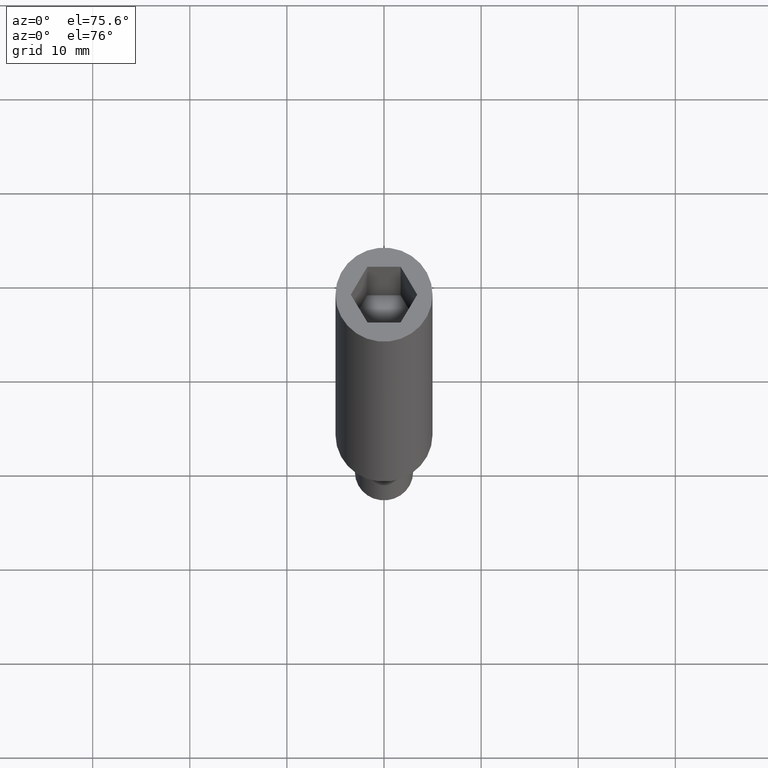
[diagram: clean part render]
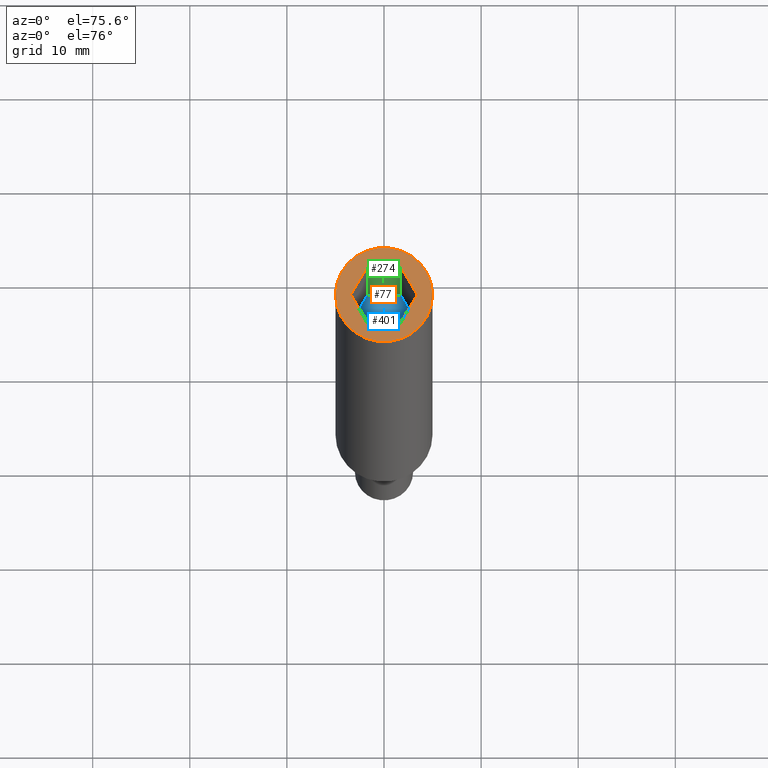
[diagram: same view with three faces highlighted in distinct colors, each labeled with its STEP entity id]
A machine part, auxiliary view with three faces highlighted in distinct colors.
Their STEP definitions:

[orange] entity #77 — the highlighted planar face has unit normal (0, 0, 1).
#2=CARTESIAN_POINT('',(10.0,-9.999999999999996,58.0));
#3=DIRECTION('',(0.0,0.0,1.0));
#4=DIRECTION('',(0.0,1.0,0.0));
#5=AXIS2_PLACEMENT_3D('',#2,#3,#4);
#6=PLANE('',#5);
#7=CARTESIAN_POINT('',(5.0,3.551476E-015,58.0));
#8=VERTEX_POINT('',#7);
#9=CARTESIAN_POINT('',(-5.0,3.551476E-015,58.0));
#10=VERTEX_POINT('',#9);
#11=CARTESIAN_POINT('',(0.0,3.551476E-015,58.0));
#12=DIRECTION('',(0.0,-6.123234E-017,-1.0));
#13=DIRECTION('',(-1.0,0.0,0.0));
#14=AXIS2_PLACEMENT_3D('',#11,#12,#13);
#15=CIRCLE('',#14,5.0);
#16=EDGE_CURVE('',#8,#10,#15,.T.);
#17=ORIENTED_EDGE('',*,*,#16,.F.);
#18=CARTESIAN_POINT('',(0.0,3.551476E-015,58.0));
#19=DIRECTION('',(0.0,-6.123234E-017,-1.0));
#20=DIRECTION('',(-1.0,0.0,0.0));
#21=AXIS2_PLACEMENT_3D('',#18,#19,#20);
#22=CIRCLE('',#21,5.0);
#23=EDGE_CURVE('',#10,#8,#22,.T.);
#24=ORIENTED_EDGE('',*,*,#23,.F.);
#25=EDGE_LOOP('',(#17,#24));
#26=FACE_OUTER_BOUND('',#25,.T.);
#27=CARTESIAN_POINT('',(1.710586138472991,2.962822102557770,57.999999999999886));
#28=VERTEX_POINT('',#27);
#29=CARTESIAN_POINT('',(-1.710586138472536,2.962822102557770,57.999999999999886));
#30=VERTEX_POINT('',#29);
#31=CARTESIAN_POINT('',(1.710586138472991,2.962822102557770,57.999999999999886));
#32=DIRECTION('',(-1.0,0.0,0.0));
#33=VECTOR('',#32,3.421172276945526);
#34=LINE('',#31,#33);
#35=EDGE_CURVE('',#28,#30,#34,.T.);
#36=ORIENTED_EDGE('',*,*,#35,.F.);
#37=CARTESIAN_POINT('',(3.421172276945413,3.551476E-015,57.999999999999886));
#38=VERTEX_POINT('',#37);
#39=CARTESIAN_POINT('',(3.421172276945413,3.552714E-015,57.999999999999886));
#40=DIRECTION('',(-0.499999999999939,0.866025403784474,0.0));
#41=VECTOR('',#40,3.421172276945260);
#42=LINE('',#39,#41);
#43=EDGE_CURVE('',#38,#28,#42,.T.);
#44=ORIENTED_EDGE('',*,*,#43,.F.);
#45=CARTESIAN_POINT('',(1.710586138472991,-2.962822102557819,57.999999999999886));
#46=VERTEX_POINT('',#45);
#47=CARTESIAN_POINT('',(1.710586138472990,-2.962822102557820,57.999999999999886));
#48=DIRECTION('',(0.499999999999932,0.866025403784478,0.0));
#49=VECTOR('',#48,3.421172276945309);
#50=LINE('',#47,#49);
#51=EDGE_CURVE('',#46,#38,#50,.T.);
#52=ORIENTED_EDGE('',*,*,#51,.F.);
#53=CARTESIAN_POINT('',(-1.710586138472536,-2.962822102557819,57.999999999999886));
#54=VERTEX_POINT('',#53);
#55=CARTESIAN_POINT('',(-1.710586138472536,-2.962822102557819,57.999999999999886));
#56=DIRECTION('',(1.0,0.0,0.0));
#57=VECTOR('',#56,3.421172276945526);
#58=LINE('',#55,#57);
#59=EDGE_CURVE('',#54,#46,#58,.T.);
#60=ORIENTED_EDGE('',*,*,#59,.F.);
#61=CARTESIAN_POINT('',(-3.421172276945640,3.551476E-015,57.999999999999886));
#62=VERTEX_POINT('',#61);
#63=CARTESIAN_POINT('',(-3.421172276945641,3.552714E-015,57.999999999999886));
#64=DIRECTION('',(0.500000000000082,-0.866025403784391,0.0));
#65=VECTOR('',#64,3.421172276945650);
#66=LINE('',#63,#65);
#67=EDGE_CURVE('',#62,#54,#66,.T.);
#68=ORIENTED_EDGE('',*,*,#67,.F.);
#69=CARTESIAN_POINT('',(-1.710586138472535,2.962822102557770,57.999999999999886));
#70=DIRECTION('',(-0.500000000000089,-0.866025403784387,0.0));
#71=VECTOR('',#70,3.421172276945601);
#72=LINE('',#69,#71);
#73=EDGE_CURVE('',#30,#62,#72,.T.);
#74=ORIENTED_EDGE('',*,*,#73,.F.);
#75=EDGE_LOOP('',(#36,#44,#52,#60,#68,#74));
#76=FACE_BOUND('',#75,.T.);
#77=ADVANCED_FACE('',(#26,#76),#6,.T.);

[blue] entity #401 — the highlighted planar face has unit normal (0, 0, 1).
#249=CARTESIAN_POINT('',(1.710586138472991,2.962822102557769,46.232834030816264));
#250=VERTEX_POINT('',#249);
#258=CARTESIAN_POINT('',(-1.710586138472536,2.962822102557769,46.232834030816264));
#259=VERTEX_POINT('',#258);
#266=CARTESIAN_POINT('',(1.710586138472991,2.962822102557769,46.232834030816264));
#267=DIRECTION('',(-1.0,0.0,0.0));
#268=VECTOR('',#267,3.421172276945526);
#269=LINE('',#266,#268);
#270=EDGE_CURVE('',#250,#259,#269,.T.);
#282=CARTESIAN_POINT('',(-3.421172276945640,2.830945E-015,46.232834030816264));
#283=VERTEX_POINT('',#282);
#290=CARTESIAN_POINT('',(-1.710586138472535,2.962822102557769,46.232834030816264));
#291=DIRECTION('',(-0.500000000000089,-0.866025403784387,0.0));
#292=VECTOR('',#291,3.421172276945601);
#293=LINE('',#290,#292);
#294=EDGE_CURVE('',#259,#283,#293,.T.);
#306=CARTESIAN_POINT('',(-1.710586138472536,-2.962822102557820,46.232834030816264));
#307=VERTEX_POINT('',#306);
#314=CARTESIAN_POINT('',(-3.421172276945641,2.664535E-015,46.232834030816264));
#315=DIRECTION('',(0.500000000000082,-0.866025403784391,0.0));
#316=VECTOR('',#315,3.421172276945650);
#317=LINE('',#314,#316);
#318=EDGE_CURVE('',#283,#307,#317,.T.);
#330=CARTESIAN_POINT('',(1.710586138472991,-2.962822102557820,46.232834030816264));
#331=VERTEX_POINT('',#330);
#338=CARTESIAN_POINT('',(-1.710586138472536,-2.962822102557820,46.232834030816264));
#339=DIRECTION('',(1.0,0.0,0.0));
#340=VECTOR('',#339,3.421172276945526);
#341=LINE('',#338,#340);
#342=EDGE_CURVE('',#307,#331,#341,.T.);
#354=CARTESIAN_POINT('',(3.421172276945413,2.830945E-015,46.232834030816264));
#355=VERTEX_POINT('',#354);
#362=CARTESIAN_POINT('',(1.710586138472990,-2.962822102557821,46.232834030816264));
#363=DIRECTION('',(0.499999999999932,0.866025403784478,0.0));
#364=VECTOR('',#363,3.421172276945309);
#365=LINE('',#362,#364);
#366=EDGE_CURVE('',#331,#355,#365,.T.);
#376=CARTESIAN_POINT('',(3.421172276945413,2.664535E-015,46.232834030816264));
#377=DIRECTION('',(-0.499999999999939,0.866025403784474,0.0));
#378=VECTOR('',#377,3.421172276945260);
#379=LINE('',#376,#378);
#380=EDGE_CURVE('',#355,#250,#379,.T.);
#388=CARTESIAN_POINT('',(4.105526732343265,-3.555506523078129,46.232834030816377));
#389=DIRECTION('',(0.0,0.0,1.0));
#390=DIRECTION('',(0.0,1.0,0.0));
#391=AXIS2_PLACEMENT_3D('',#388,#389,#390);
#392=PLANE('',#391);
#393=ORIENTED_EDGE('',*,*,#270,.T.);
#394=ORIENTED_EDGE('',*,*,#294,.T.);
#395=ORIENTED_EDGE('',*,*,#318,.T.);
#396=ORIENTED_EDGE('',*,*,#342,.T.);
#397=ORIENTED_EDGE('',*,*,#366,.T.);
#398=ORIENTED_EDGE('',*,*,#380,.T.);
#399=EDGE_LOOP('',(#393,#394,#395,#396,#397,#398));
#400=FACE_OUTER_BOUND('',#399,.T.);
#401=ADVANCED_FACE('',(#400),#392,.T.);

[green] entity #274 — the highlighted planar face has unit normal (0, -1, 0).
#27=CARTESIAN_POINT('',(1.710586138472991,2.962822102557770,57.999999999999886));
#28=VERTEX_POINT('',#27);
#29=CARTESIAN_POINT('',(-1.710586138472536,2.962822102557770,57.999999999999886));
#30=VERTEX_POINT('',#29);
#31=CARTESIAN_POINT('',(1.710586138472991,2.962822102557770,57.999999999999886));
#32=DIRECTION('',(-1.0,0.0,0.0));
#33=VECTOR('',#32,3.421172276945526);
#34=LINE('',#31,#33);
#35=EDGE_CURVE('',#28,#30,#34,.T.);
#244=CARTESIAN_POINT('',(1.710586138472991,2.962822102557770,57.999999999999886));
#245=DIRECTION('',(0.0,-1.0,0.0));
#246=DIRECTION('',(-1.0,0.0,0.0));
#247=AXIS2_PLACEMENT_3D('',#244,#245,#246);
#248=PLANE('',#247);
#249=CARTESIAN_POINT('',(1.710586138472991,2.962822102557769,46.232834030816264));
#250=VERTEX_POINT('',#249);
#251=CARTESIAN_POINT('',(1.710586138472991,2.962822102557770,57.999999999999886));
#252=DIRECTION('',(0.0,0.0,-1.0));
#253=VECTOR('',#252,11.767165969183623);
#254=LINE('',#251,#253);
#255=EDGE_CURVE('',#28,#250,#254,.T.);
#256=ORIENTED_EDGE('',*,*,#255,.F.);
#257=ORIENTED_EDGE('',*,*,#35,.T.);
#258=CARTESIAN_POINT('',(-1.710586138472536,2.962822102557769,46.232834030816264));
#259=VERTEX_POINT('',#258);
#260=CARTESIAN_POINT('',(-1.710586138472536,2.962822102557770,57.999999999999886));
#261=DIRECTION('',(0.0,0.0,-1.0));
#262=VECTOR('',#261,11.767165969183623);
#263=LINE('',#260,#262);
#264=EDGE_CURVE('',#30,#259,#263,.T.);
#265=ORIENTED_EDGE('',*,*,#264,.T.);
#266=CARTESIAN_POINT('',(1.710586138472991,2.962822102557769,46.232834030816264));
#267=DIRECTION('',(-1.0,0.0,0.0));
#268=VECTOR('',#267,3.421172276945526);
#269=LINE('',#266,#268);
#270=EDGE_CURVE('',#250,#259,#269,.T.);
#271=ORIENTED_EDGE('',*,*,#270,.F.);
#272=EDGE_LOOP('',(#256,#257,#265,#271));
#273=FACE_OUTER_BOUND('',#272,.T.);
#274=ADVANCED_FACE('',(#273),#248,.T.);